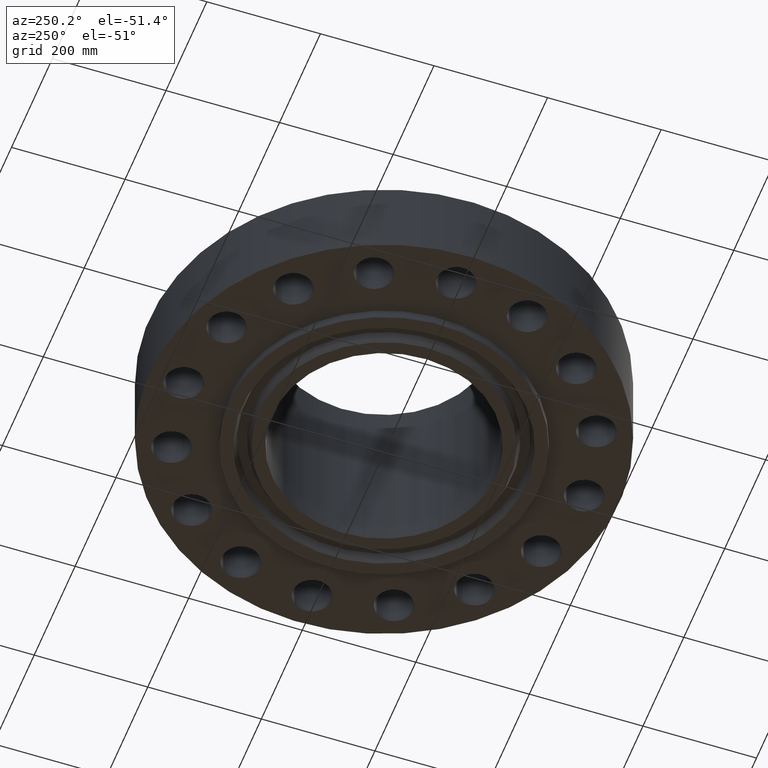
[diagram: clean part render]
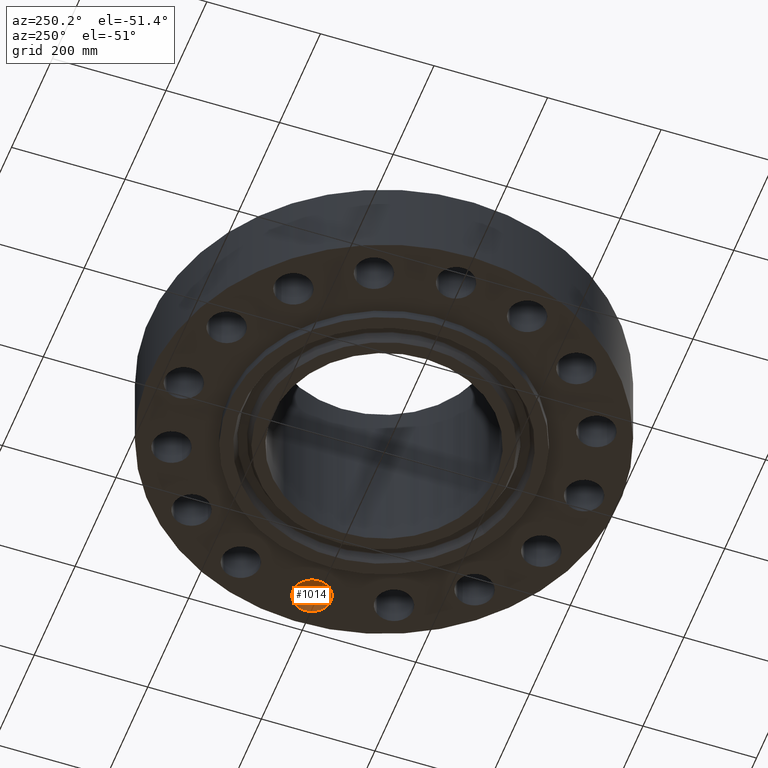
[diagram: same view with one face highlighted and labeled with its STEP entity id]
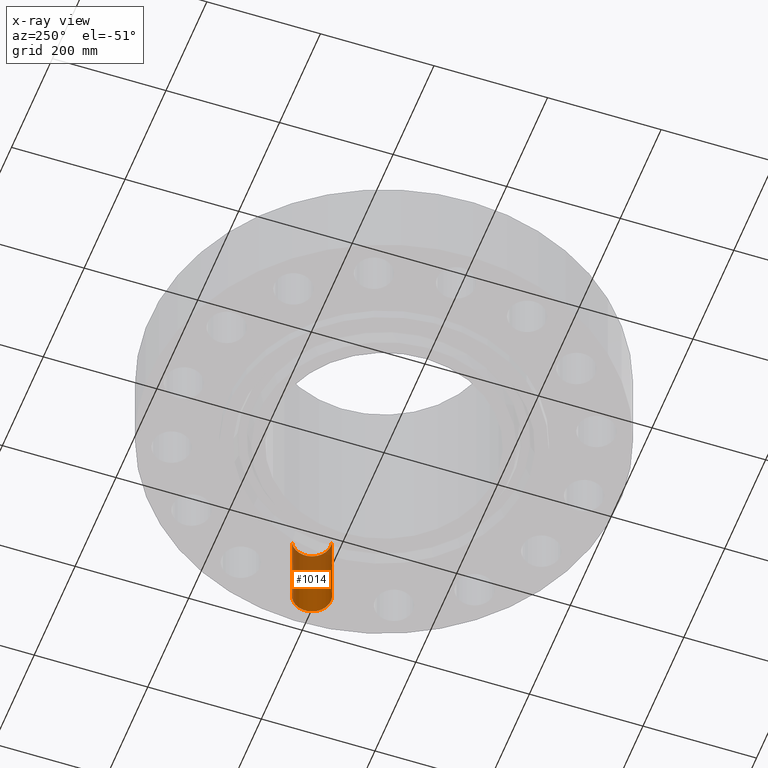
[diagram: x-ray of the same camera — body ghosted, the highlighted face saturated]
A machine part, auxiliary view. The second image highlights one B-rep face of the part: STEP entity #1014.
The next image is the same camera in x-ray: the body ghosted, the highlighted face saturated — about 35% of this face is hidden behind the body in this view.
In plain terms, the highlighted cylindrical surface (edge-blend (fillet) strip) has radius 33.401 mm, axis along (0, -0, -1).
Its self-contained STEP definition (entity closure, byte-faithful):
#554=AXIS2_PLACEMENT_3D('Circle Axis2P3D',#552,#553,$) ;
#987=AXIS2_PLACEMENT_3D('Cylinder Axis2P3D',#984,#985,#986) ;
#1005=AXIS2_PLACEMENT_3D('Circle Axis2P3D',#1003,#1004,$) ;
#552=CARTESIAN_POINT('Axis2P3D Location',(13.8750000001,-2.23792987641E-015,0.)) ;
#556=CARTESIAN_POINT('Vertex',(14.5054445833,1.15402106889,0.)) ;
#558=CARTESIAN_POINT('Vertex',(13.2445554168,-1.15402106889,0.)) ;
#984=CARTESIAN_POINT('Axis2P3D Location',(13.8750000001,-1.3883311595E-015,5.74606299215)) ;
#989=CARTESIAN_POINT('Line Origine',(14.5054445833,1.15402106889,2.87500000001)) ;
#993=CARTESIAN_POINT('Vertex',(14.5054445833,1.15402106889,5.75000000002)) ;
#996=CARTESIAN_POINT('Line Origine',(13.2445554168,-1.15402106889,2.87500000001)) ;
#1000=CARTESIAN_POINT('Vertex',(13.2445554168,-1.15402106889,5.75000000002)) ;
#1003=CARTESIAN_POINT('Axis2P3D Location',(13.8750000001,-1.3883311595E-015,5.75000000002)) ;
#553=DIRECTION('Axis2P3D Direction',(0.,0.,-0.0393700787402)) ;
#985=DIRECTION('Axis2P3D Direction',(0.,-0.,-0.0393700787402)) ;
#986=DIRECTION('Axis2P3D XDirection',(-0.0188750212049,-0.0345504945626,0.)) ;
#990=DIRECTION('Vector Direction',(0.,0.,-0.0393700787402)) ;
#997=DIRECTION('Vector Direction',(0.,0.,-0.0393700787402)) ;
#1004=DIRECTION('Axis2P3D Direction',(0.,-0.,-0.0393700787402)) ;
#991=VECTOR('Line Direction',#990,0.0393700787402) ;
#998=VECTOR('Line Direction',#997,0.0393700787402) ;
#1009=ORIENTED_EDGE('',*,*,#995,.F.) ;
#1010=ORIENTED_EDGE('',*,*,#560,.T.) ;
#1011=ORIENTED_EDGE('',*,*,#1002,.T.) ;
#1012=ORIENTED_EDGE('',*,*,#1007,.F.) ;
#1014=ADVANCED_FACE('PartBody',(#1013),#988,.F.) ;
#555=CIRCLE('generated circle',#554,1.31500000001) ;
#1006=CIRCLE('generated circle',#1005,1.31500000001) ;
#988=CYLINDRICAL_SURFACE('generated cylinder',#987,1.31500000001) ;
#560=EDGE_CURVE('',#557,#559,#555,.T.) ;
#995=EDGE_CURVE('',#557,#994,#992,.F.) ;
#1002=EDGE_CURVE('',#559,#1001,#999,.F.) ;
#1007=EDGE_CURVE('',#994,#1001,#1006,.T.) ;
#1008=EDGE_LOOP('',(#1009,#1010,#1011,#1012)) ;
#1013=FACE_OUTER_BOUND('',#1008,.T.) ;
#992=LINE('Line',#989,#991) ;
#999=LINE('Line',#996,#998) ;
#557=VERTEX_POINT('',#556) ;
#559=VERTEX_POINT('',#558) ;
#994=VERTEX_POINT('',#993) ;
#1001=VERTEX_POINT('',#1000) ;